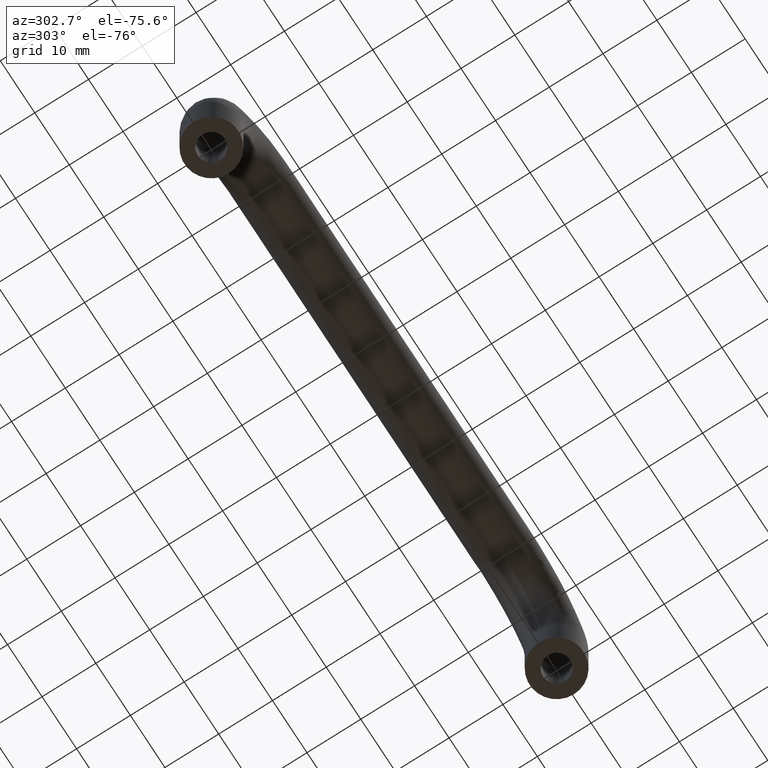
[diagram: clean part render]
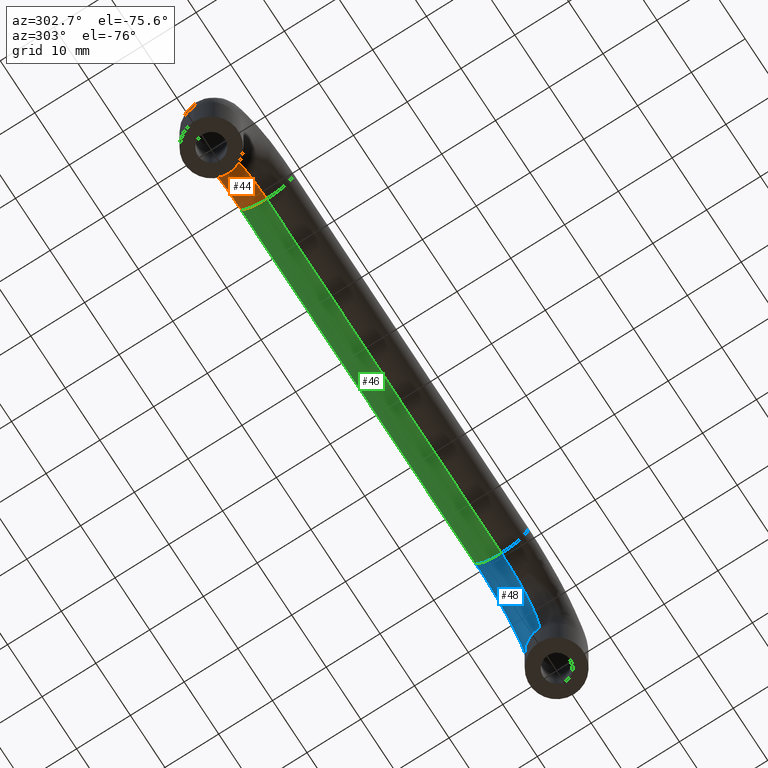
[diagram: same view with three faces highlighted in distinct colors, each labeled with its STEP entity id]
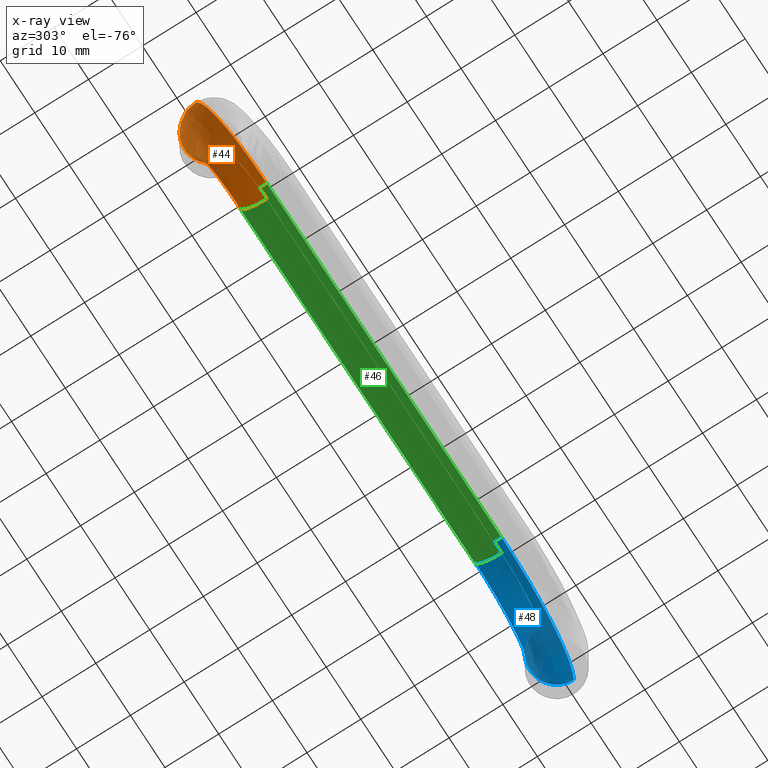
[diagram: x-ray of the same camera — body ghosted, the three highlighted faces saturated]
A machine part, auxiliary view with three faces highlighted in distinct colors.
The next image is the same camera in x-ray (body ghosted, the three faces saturated) — at least one of them is partly hidden behind the body in this view.
Their STEP definitions:

[orange] entity #44 — the highlighted face is a freeform B-spline surface patch.
#44=ADVANCED_FACE('',(#101),#100,.T.);
#100=( BOUNDED_SURFACE() B_SPLINE_SURFACE( 2,2,((#262,#263,#264,#265,#266),(#267,#268,#269,#270,#271),(#272,#273,#274,#275,#276),(#277,#278,#279,#280,#281),(#282,#283,#284,#285,#286)), .UNSPECIFIED.,.F.,.F.,.F.) B_SPLINE_SURFACE_WITH_KNOTS((3,2,3),(3,2,3),(-3.14159265359E+00,-1.57079632679E+00,0.00000000000E+00),(2.35619449019E+00,3.14159265359E+00,3.92699081699E+00), .UNSPECIFIED. ) GEOMETRIC_REPRESENTATION_ITEM() RATIONAL_B_SPLINE_SURFACE(((8.53553390593E-01,8.53553390593E-01,1.00000000000E+00,8.53553390593E-01,8.53553390593E-01),(6.03553390593E-01,6.03553390593E-01,7.07106781187E-01,6.03553390593E-01,6.03553390593E-01),(8.53553390593E-01,8.53553390593E-01,1.00000000000E+00,8.53553390593E-01,8.53553390593E-01),(6.03553390593E-01,6.03553390593E-01,7.07106781187E-01,6.03553390593E-01,6.03553390593E-01),(8.53553390593E-01,8.53553390593E-01,1.00000000000E+00,8.53553390593E-01,8.53553390593E-01))) REPRESENTATION_ITEM('') SURFACE() );
#101=FACE_OUTER_BOUND('',#287,.T.);
#262=CARTESIAN_POINT('',(-4.50000000000E+01,-9.33678950984E-11,-1.10000000000E+01));
#263=CARTESIAN_POINT('',(-4.50000000000E+01,-9.33651317356E-11,-6.44365081390E+00));
#264=CARTESIAN_POINT('',(-4.17781745931E+01,-9.33639871133E-11,-3.22182540696E+00));
#265=CARTESIAN_POINT('',(-3.85563491861E+01,-9.33628424910E-11,1.55876748587E-12));
#266=CARTESIAN_POINT('',(-3.40000000000E+01,-9.33639871133E-11,1.55668635438E-12));
#267=CARTESIAN_POINT('',(-4.50000000000E+01,4.99999999991E+00,-1.10000000000E+01));
#268=CARTESIAN_POINT('',(-4.50000000000E+01,4.99999999991E+00,-6.44365081390E+00));
#269=CARTESIAN_POINT('',(-4.17781745931E+01,4.99999999991E+00,-3.22182540696E+00));
#270=CARTESIAN_POINT('',(-3.85563491861E+01,4.99999999991E+00,1.55399079157E-12));
#271=CARTESIAN_POINT('',(-3.40000000000E+01,4.99999999991E+00,1.55104762719E-12));
#272=CARTESIAN_POINT('',(-5.00000000000E+01,4.99999999991E+00,-1.10000000000E+01));
#273=CARTESIAN_POINT('',(-5.00000000000E+01,4.99999999991E+00,-4.37258300204E+00));
#274=CARTESIAN_POINT('',(-4.53137084990E+01,4.99999999991E+00,3.13708498972E-01));
#275=CARTESIAN_POINT('',(-4.06274169980E+01,4.99999999991E+00,5.00000000000E+00));
#276=CARTESIAN_POINT('',(-3.40000000000E+01,4.99999999991E+00,5.00000000000E+00));
#277=CARTESIAN_POINT('',(-5.50000000000E+01,4.99999999991E+00,-1.10000000000E+01));
#278=CARTESIAN_POINT('',(-5.50000000000E+01,4.99999999991E+00,-2.30151519018E+00));
#279=CARTESIAN_POINT('',(-4.88492424049E+01,4.99999999991E+00,3.84924240490E+00));
#280=CARTESIAN_POINT('',(-4.26984848098E+01,4.99999999991E+00,1.00000000000E+01));
#281=CARTESIAN_POINT('',(-3.40000000000E+01,4.99999999991E+00,1.00000000000E+01));
#282=CARTESIAN_POINT('',(-5.50000000000E+01,-9.33659952536E-11,-1.10000000000E+01));
#283=CARTESIAN_POINT('',(-5.50000000000E+01,-9.33607197429E-11,-2.30151519018E+00));
#284=CARTESIAN_POINT('',(-4.88492424049E+01,-9.33585345549E-11,3.84924240490E+00));
#285=CARTESIAN_POINT('',(-4.26984848098E+01,-9.33563493668E-11,1.00000000000E+01));
#286=CARTESIAN_POINT('',(-3.40000000000E+01,-9.33585345549E-11,1.00000000000E+01));
#287=EDGE_LOOP('',(#448,#449,#450,#451));
#448=ORIENTED_EDGE('',*,*,#516,.F.);
#449=ORIENTED_EDGE('',*,*,#517,.F.);
#450=ORIENTED_EDGE('',*,*,#518,.F.);
#451=ORIENTED_EDGE('',*,*,#519,.T.);
#516=EDGE_CURVE('',#622,#623,#624,.T.);
#517=EDGE_CURVE('',#630,#622,#631,.T.);
#518=EDGE_CURVE('',#637,#630,#638,.T.);
#519=EDGE_CURVE('',#637,#623,#644,.T.);
#622=VERTEX_POINT('',#822);
#623=VERTEX_POINT('',#823);
#624=CIRCLE('',#827,5.00000000000E+00);
#630=VERTEX_POINT('',#828);
#631=(BOUNDED_CURVE() B_SPLINE_CURVE(2,(#829,#830,#831,#832,#833),.UNSPECIFIED.,.F.,.F.) B_SPLINE_CURVE_WITH_KNOTS((3,2,3),(2.35619449019E+00,3.14159265359E+00,3.92699081699E+00),.UNSPECIFIED.) CURVE() GEOMETRIC_REPRESENTATION_ITEM() RATIONAL_B_SPLINE_CURVE((8.53553390593E-01,8.53553390593E-01,1.00000000000E+00,8.53553390593E-01,8.53553390593E-01)) REPRESENTATION_ITEM('') );
#637=VERTEX_POINT('',#834);
#638=CIRCLE('',#838,5.00000000000E+00);
#644=(BOUNDED_CURVE() B_SPLINE_CURVE(2,(#839,#840,#841,#842,#843),.UNSPECIFIED.,.F.,.F.) B_SPLINE_CURVE_WITH_KNOTS((3,2,3),(2.35619449019E+00,3.14159265359E+00,3.92699081699E+00),.UNSPECIFIED.) CURVE() GEOMETRIC_REPRESENTATION_ITEM() RATIONAL_B_SPLINE_CURVE((8.53553390593E-01,8.53553390593E-01,1.00000000000E+00,8.53553390593E-01,8.53553390593E-01)) REPRESENTATION_ITEM('') );
#822=CARTESIAN_POINT('',(-3.40000000000E+01,-9.33365977100E-11,-2.96059473233E-16));
#823=CARTESIAN_POINT('',(-3.40000000000E+01,-9.33361843217E-11,1.00000000000E+01));
#824=CARTESIAN_POINT('',(-3.40000000000E+01,-9.33367966249E-11,5.00000000000E+00));
#825=DIRECTION('',(1.00000000000E+00,0.00000000000E+00,0.00000000000E+00));
#826=DIRECTION('',(-0.00000000000E+00,-0.00000000000E+00,1.00000000000E+00));
#827=AXIS2_PLACEMENT_3D('',#824,#825,#826);
#828=CARTESIAN_POINT('',(-4.50000000000E+01,-9.33368937694E-11,-1.10000000000E+01));
#829=CARTESIAN_POINT('',(-4.50000000000E+01,-9.33678950984E-11,-1.10000000000E+01));
#830=CARTESIAN_POINT('',(-4.50000000000E+01,-9.33651317356E-11,-6.44365081391E+00));
#831=CARTESIAN_POINT('',(-4.17781745931E+01,-9.33639871133E-11,-3.22182540696E+00));
#832=CARTESIAN_POINT('',(-3.85563491861E+01,-9.33628424910E-11,-3.63573671270E-12));
#833=CARTESIAN_POINT('',(-3.40000000000E+01,-9.33639871133E-11,1.55668635438E-12));
#834=CARTESIAN_POINT('',(-5.50000000000E+01,-9.33376078430E-11,-1.10000000000E+01));
#835=CARTESIAN_POINT('',(-5.00000000000E+01,-9.33367966249E-11,-1.10000000000E+01));
#836=DIRECTION('',(0.00000000000E+00,0.00000000000E+00,-1.00000000000E+00));
#837=DIRECTION('',(-1.00000000000E+00,-3.97829799999E-17,-0.00000000000E+00));
#838=AXIS2_PLACEMENT_3D('',#835,#836,#837);
#839=CARTESIAN_POINT('',(-5.50000000000E+01,-9.33659952536E-11,-1.10000000000E+01));
#840=CARTESIAN_POINT('',(-5.50000000000E+01,-9.33607197429E-11,-2.30151519018E+00));
#841=CARTESIAN_POINT('',(-4.88492424049E+01,-9.33585345549E-11,3.84924240490E+00));
#842=CARTESIAN_POINT('',(-4.26984848098E+01,-9.33563493668E-11,1.00000000000E+01));
#843=CARTESIAN_POINT('',(-3.40000000000E+01,-9.33585345549E-11,1.00000000000E+01));

[blue] entity #48 — the highlighted face is a freeform B-spline surface patch.
#48=ADVANCED_FACE('',(#141),#140,.T.);
#140=( BOUNDED_SURFACE() B_SPLINE_SURFACE( 2,2,((#324,#325,#326,#327,#328,#329,#330),(#331,#332,#333,#334,#335,#336,#337),(#338,#339,#340,#341,#342,#343,#344),(#345,#346,#347,#348,#349,#350,#351),(#352,#353,#354,#355,#356,#357,#358)), .UNSPECIFIED.,.F.,.F.,.F.) B_SPLINE_SURFACE_WITH_KNOTS((3,2,3),(3,2,2,3),(-3.14159265359E+00,-1.57079632679E+00,0.00000000000E+00),(1.56981901998E+00,1.57079632679E+00,3.14159265359E+00,3.14256996040E+00), .UNSPECIFIED. ) GEOMETRIC_REPRESENTATION_ITEM() RATIONAL_B_SPLINE_SURFACE(((9.99635766346E-01,9.99817769794E-01,1.00000000000E+00,7.07106781187E-01,1.00000000000E+00,9.99817769794E-01,9.99635766346E-01),(7.06849229100E-01,7.06977924972E-01,7.07106781187E-01,5.00000000000E-01,7.07106781187E-01,7.06977924972E-01,7.06849229100E-01),(9.99635766346E-01,9.99817769794E-01,1.00000000000E+00,7.07106781187E-01,1.00000000000E+00,9.99817769794E-01,9.99635766346E-01),(7.06849229100E-01,7.06977924972E-01,7.07106781187E-01,5.00000000000E-01,7.07106781187E-01,7.06977924972E-01,7.06849229100E-01),(9.99635766346E-01,9.99817769794E-01,1.00000000000E+00,7.07106781187E-01,1.00000000000E+00,9.99817769794E-01,9.99635766346E-01))) REPRESENTATION_ITEM('') SURFACE() );
#141=FACE_OUTER_BOUND('',#359,.T.);
#324=CARTESIAN_POINT('',(3.39903194999E+01,-9.33768227942E-11,-4.25972035266E-06));
#325=CARTESIAN_POINT('',(3.39951597491E+01,-9.33768227942E-11,-7.93711755164E-11));
#326=CARTESIAN_POINT('',(3.40000000001E+01,-9.33768227942E-11,-7.93711762981E-11));
#327=CARTESIAN_POINT('',(4.50000000000E+01,-9.33768227942E-11,-7.93729526549E-11));
#328=CARTESIAN_POINT('',(4.50000000000E+01,-9.33768227942E-11,-1.10000000000E+01));
#329=CARTESIAN_POINT('',(4.50000000000E+01,-9.33768227942E-11,-1.10048402510E+01));
#330=CARTESIAN_POINT('',(4.49999957404E+01,-9.33768227942E-11,-1.10096805002E+01));
#331=CARTESIAN_POINT('',(3.39903194999E+01,4.99999999991E+00,-4.25972035266E-06));
#332=CARTESIAN_POINT('',(3.39951597491E+01,4.99999999991E+00,-7.93711755164E-11));
#333=CARTESIAN_POINT('',(3.40000000001E+01,4.99999999991E+00,-7.93711762981E-11));
#334=CARTESIAN_POINT('',(4.50000000000E+01,4.99999999991E+00,-7.93729526549E-11));
#335=CARTESIAN_POINT('',(4.50000000000E+01,4.99999999991E+00,-1.10000000000E+01));
#336=CARTESIAN_POINT('',(4.50000000000E+01,4.99999999991E+00,-1.10048402510E+01));
#337=CARTESIAN_POINT('',(4.49999957404E+01,4.99999999991E+00,-1.10096805002E+01));
#338=CARTESIAN_POINT('',(3.39859192726E+01,4.99999999991E+00,4.99999380408E+00));
#339=CARTESIAN_POINT('',(3.39929596350E+01,4.99999999991E+00,4.99999999992E+00));
#340=CARTESIAN_POINT('',(3.40000000001E+01,4.99999999991E+00,4.99999999992E+00));
#341=CARTESIAN_POINT('',(5.00000000000E+01,4.99999999991E+00,4.99999999992E+00));
#342=CARTESIAN_POINT('',(5.00000000000E+01,4.99999999991E+00,-1.10000000000E+01));
#343=CARTESIAN_POINT('',(5.00000000000E+01,4.99999999991E+00,-1.10070403651E+01));
#344=CARTESIAN_POINT('',(4.99999938042E+01,4.99999999991E+00,-1.10140807275E+01));
#345=CARTESIAN_POINT('',(3.39815190452E+01,4.99999999991E+00,9.99999186788E+00));
#346=CARTESIAN_POINT('',(3.39907595209E+01,4.99999999991E+00,9.99999999992E+00));
#347=CARTESIAN_POINT('',(3.40000000001E+01,4.99999999991E+00,9.99999999992E+00));
#348=CARTESIAN_POINT('',(5.50000000000E+01,4.99999999991E+00,9.99999999992E+00));
#349=CARTESIAN_POINT('',(5.50000000000E+01,4.99999999991E+00,-1.10000000000E+01));
#350=CARTESIAN_POINT('',(5.50000000000E+01,4.99999999991E+00,-1.10092404792E+01));
#351=CARTESIAN_POINT('',(5.49999918680E+01,4.99999999991E+00,-1.10184809549E+01));
#352=CARTESIAN_POINT('',(3.39815190452E+01,-9.33774350974E-11,9.99999186788E+00));
#353=CARTESIAN_POINT('',(3.39907595209E+01,-9.33774350974E-11,9.99999999992E+00));
#354=CARTESIAN_POINT('',(3.40000000001E+01,-9.33774350974E-11,9.99999999992E+00));
#355=CARTESIAN_POINT('',(5.50000000000E+01,-9.33774350974E-11,9.99999999992E+00));
#356=CARTESIAN_POINT('',(5.50000000000E+01,-9.33774350974E-11,-1.10000000000E+01));
#357=CARTESIAN_POINT('',(5.50000000000E+01,-9.33774350974E-11,-1.10092404792E+01));
#358=CARTESIAN_POINT('',(5.49999918680E+01,-9.33774350974E-11,-1.10184809549E+01));
#359=EDGE_LOOP('',(#464,#465,#466,#467));
#464=ORIENTED_EDGE('',*,*,#526,.T.);
#465=ORIENTED_EDGE('',*,*,#527,.F.);
#466=ORIENTED_EDGE('',*,*,#522,.T.);
#467=ORIENTED_EDGE('',*,*,#528,.T.);
#522=EDGE_CURVE('',#662,#663,#664,.T.);
#526=EDGE_CURVE('',#688,#689,#690,.T.);
#527=EDGE_CURVE('',#662,#689,#696,.T.);
#528=EDGE_CURVE('',#663,#688,#702,.T.);
#662=VERTEX_POINT('',#852);
#663=VERTEX_POINT('',#853);
#664=CIRCLE('',#857,5.00000000000E+00);
#688=VERTEX_POINT('',#866);
#689=VERTEX_POINT('',#867);
#690=CIRCLE('',#871,5.00000000000E+00);
#696=(BOUNDED_CURVE() B_SPLINE_CURVE(2,(#872,#873,#874),.UNSPECIFIED.,.F.,.F.) B_SPLINE_CURVE_WITH_KNOTS((3,3),(1.57079632679E+00,3.14159265359E+00),.UNSPECIFIED.) CURVE() GEOMETRIC_REPRESENTATION_ITEM() RATIONAL_B_SPLINE_CURVE((1.00000000000E+00,7.07106781187E-01,1.00000000000E+00)) REPRESENTATION_ITEM('') );
#702=(BOUNDED_CURVE() B_SPLINE_CURVE(3,(#875,#876,#877,#878,#879,#880,#881,#882,#883),.UNSPECIFIED.,.F.,.F.) B_SPLINE_CURVE_WITH_KNOTS((4,1,1,1,1,1,4),(1.57079632680E+00,1.84807220328E+00,2.07912984810E+00,2.35619449020E+00,2.63325913230E+00,2.86431677711E+00,3.14159265360E+00),.UNSPECIFIED.) CURVE() GEOMETRIC_REPRESENTATION_ITEM() RATIONAL_B_SPLINE_CURVE((1.00000000000E+00,1.00000000000E+00,1.00000000000E+00,1.00000000000E+00,1.00000000000E+00,1.00000000000E+00,1.00000000000E+00,1.00000000000E+00,1.00000000000E+00)) REPRESENTATION_ITEM('') );
#852=CARTESIAN_POINT('',(3.40000000000E+01,-9.33376078430E-11,2.43592450410E-32));
#853=CARTESIAN_POINT('',(3.40000000000E+01,-9.33368937694E-11,1.00000000000E+01));
#854=CARTESIAN_POINT('',(3.40000000000E+01,-9.33367966249E-11,5.00000000000E+00));
#855=DIRECTION('',(1.00000000000E+00,0.00000000000E+00,-0.00000000000E+00));
#856=DIRECTION('',(-0.00000000000E+00,-3.97829799999E-17,-1.00000000000E+00));
#857=AXIS2_PLACEMENT_3D('',#854,#855,#856);
#866=CARTESIAN_POINT('',(5.50000000000E+01,-9.33376078430E-11,-1.10000000000E+01));
#867=CARTESIAN_POINT('',(4.50000000000E+01,-9.33368937694E-11,-1.10000000000E+01));
#868=CARTESIAN_POINT('',(5.00000000000E+01,-9.33367966249E-11,-1.10000000000E+01));
#869=DIRECTION('',(0.00000000000E+00,0.00000000000E+00,1.00000000000E+00));
#870=DIRECTION('',(1.00000000000E+00,-3.97829799999E-17,-0.00000000000E+00));
#871=AXIS2_PLACEMENT_3D('',#868,#869,#870);
#872=CARTESIAN_POINT('',(3.40000000001E+01,-9.33768227942E-11,-7.93711762981E-11));
#873=CARTESIAN_POINT('',(4.50000000000E+01,-9.33768227942E-11,-7.93729526549E-11));
#874=CARTESIAN_POINT('',(4.50000000000E+01,-9.33768227942E-11,-1.10000000000E+01));
#875=CARTESIAN_POINT('',(3.40000000001E+01,-9.33774350974E-11,9.99999999992E+00));
#876=CARTESIAN_POINT('',(3.59365056684E+01,-9.33774350974E-11,1.00006883910E+01));
#877=CARTESIAN_POINT('',(3.94921764616E+01,-9.33774350974E-11,9.50466741294E+00));
#878=CARTESIAN_POINT('',(4.46060632110E+01,-9.33774350974E-11,7.38852365657E+00));
#879=CARTESIAN_POINT('',(4.90411501765E+01,-9.33774350974E-11,4.04115017628E+00));
#880=CARTESIAN_POINT('',(5.23885236567E+01,-9.33774350974E-11,-3.93936789264E-01));
#881=CARTESIAN_POINT('',(5.45046674131E+01,-9.33774350974E-11,-5.50782353868E+00));
#882=CARTESIAN_POINT('',(5.50006883911E+01,-9.33774350974E-11,-9.06349433181E+00));
#883=CARTESIAN_POINT('',(5.50000000000E+01,-9.33774350974E-11,-1.10000000002E+01));

[green] entity #46 — the highlighted cylindrical surface (edge-blend (fillet) strip) has radius 5 mm, axis along (1, -0, -0).
#46=ADVANCED_FACE('',(#121),#120,.T.);
#120=CYLINDRICAL_SURFACE('',#317,5.00000000000E+00);
#121=FACE_OUTER_BOUND('',#318,.T.);
#314=CARTESIAN_POINT('',(0.00000000000E+00,-9.33367966249E-11,5.00000000000E+00));
#315=DIRECTION('',(1.00000000000E+00,-0.00000000000E+00,-0.00000000000E+00));
#316=DIRECTION('',(-0.00000000000E+00,-0.00000000000E+00,-1.00000000000E+00));
#317=AXIS2_PLACEMENT_3D('',#314,#315,#316);
#318=EDGE_LOOP('',(#456,#457,#458,#459));
#456=ORIENTED_EDGE('',*,*,#522,.F.);
#457=ORIENTED_EDGE('',*,*,#523,.F.);
#458=ORIENTED_EDGE('',*,*,#516,.T.);
#459=ORIENTED_EDGE('',*,*,#524,.T.);
#516=EDGE_CURVE('',#622,#623,#624,.T.);
#522=EDGE_CURVE('',#662,#663,#664,.T.);
#523=EDGE_CURVE('',#622,#662,#670,.T.);
#524=EDGE_CURVE('',#623,#663,#676,.T.);
#622=VERTEX_POINT('',#822);
#623=VERTEX_POINT('',#823);
#624=CIRCLE('',#827,5.00000000000E+00);
#662=VERTEX_POINT('',#852);
#663=VERTEX_POINT('',#853);
#664=CIRCLE('',#857,5.00000000000E+00);
#670=(BOUNDED_CURVE() B_SPLINE_CURVE(1,(#858,#859),.UNSPECIFIED.,.F.,.F.) B_SPLINE_CURVE_WITH_KNOTS((2,2),(8.33333332085E-02,9.16666666563E-01),.UNSPECIFIED.) CURVE() GEOMETRIC_REPRESENTATION_ITEM() RATIONAL_B_SPLINE_CURVE((1.00000000000E+00,1.00000000000E+00)) REPRESENTATION_ITEM('') );
#676=(BOUNDED_CURVE() B_SPLINE_CURVE(1,(#860,#861),.UNSPECIFIED.,.F.,.F.) B_SPLINE_CURVE_WITH_KNOTS((2,2),(8.33333333333E-02,9.16666666667E-01),.UNSPECIFIED.) CURVE() GEOMETRIC_REPRESENTATION_ITEM() RATIONAL_B_SPLINE_CURVE((7.50000000000E-01,7.50000000000E-01)) REPRESENTATION_ITEM('') );
#822=CARTESIAN_POINT('',(-3.40000000000E+01,-9.33365977100E-11,-2.96059473233E-16));
#823=CARTESIAN_POINT('',(-3.40000000000E+01,-9.33361843217E-11,1.00000000000E+01));
#824=CARTESIAN_POINT('',(-3.40000000000E+01,-9.33367966249E-11,5.00000000000E+00));
#825=DIRECTION('',(1.00000000000E+00,0.00000000000E+00,0.00000000000E+00));
#826=DIRECTION('',(-0.00000000000E+00,-0.00000000000E+00,1.00000000000E+00));
#827=AXIS2_PLACEMENT_3D('',#824,#825,#826);
#852=CARTESIAN_POINT('',(3.40000000000E+01,-9.33376078430E-11,2.43592450410E-32));
#853=CARTESIAN_POINT('',(3.40000000000E+01,-9.33368937694E-11,1.00000000000E+01));
#854=CARTESIAN_POINT('',(3.40000000000E+01,-9.33367966249E-11,5.00000000000E+00));
#855=DIRECTION('',(1.00000000000E+00,0.00000000000E+00,-0.00000000000E+00));
#856=DIRECTION('',(-0.00000000000E+00,-3.97829799999E-17,-1.00000000000E+00));
#857=AXIS2_PLACEMENT_3D('',#854,#855,#856);
#858=CARTESIAN_POINT('',(-3.40000000102E+01,-9.33367966249E-11,0.00000000000E+00));
#859=CARTESIAN_POINT('',(3.39999999915E+01,-9.33367966249E-11,0.00000000000E+00));
#860=CARTESIAN_POINT('',(-3.40000000000E+01,-9.33371898289E-11,1.00000000000E+01));
#861=CARTESIAN_POINT('',(3.40000000000E+01,-9.33371898289E-11,1.00000000000E+01));